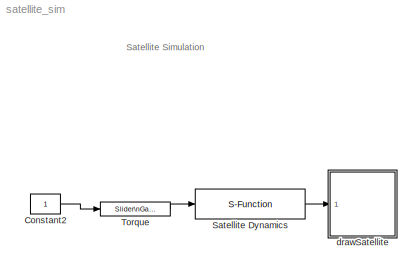
MODEL satellite_sim
KIND model
BLOCK [Constant] Constant2
  OutDataType = sfix(16)
  OutScaling = 2^0
  SID = 13
BLOCK [S-Function] Satellite Dynamics
  EnableBusSupport = off
  FunctionName = satellite_dynamics
  Parameters = AP
  Ports = [1, 1]
  SID = 15
BLOCK [Reference] Torque  REF=simulink/Math\nOperations/Slider\nGain
  FunctionWithSeparateData = off
  Ports = [1, 1]
  RTWMemSecDataConstants = Inherit from model
  RTWMemSecDataInternal = Inherit from model
  RTWMemSecDataParameters = Inherit from model
  RTWMemSecFuncExecute = Inherit from model
  RTWMemSecFuncInitTerm = Inherit from model
  SID = 14
  ShowPortLabels = FromPortIcon
  SourceBlock = simulink/Math\nOperations/Slider\nGain
  SourceType = Slider Gain
  SystemSampleTime = -1
  gain = -0.4
  high = 10
  low = -10
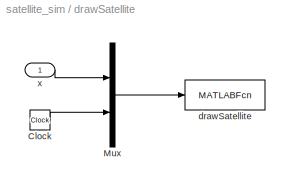
BLOCK [SubSystem] drawSatellite
  FunctionWithSeparateData = off
  MaskDisplay = image(imread('tv.jpg'))
  MaskHideContents = off
  MaskIconFrame = on
  MaskIconOpaque = on
  MaskIconRotate = none
  MaskIconUnits = autoscale
  MaskInitialization = % drawing parameters\nL = 1;\nw = .3;\n
  MaskPortRotate = default
  MinAlgLoopOccurrences = off
  Opaque = off
  Ports = [1]
  PropExecContextOutsideSubsystem = off
  RTWSystemCode = Auto
  RequestExecContextInheritance = off
  SID = 4
BLOCK [Clock] drawSatellite/Clock
  Decimation = 10
  SID = 6
BLOCK [Mux] drawSatellite/Mux
  DisplayOption = bar
  Inputs = 2
  Ports = [2, 1]
  SID = 7
BLOCK [MATLABFcn] drawSatellite/drawSatellite
  MATLABFcn = drawSatellite(u,L,w)
  OutputDimensions = 0
  Ports = [1]
  SID = 8
  SampleTime = 0.1
BLOCK [Inport] drawSatellite/x
  IconDisplay = Port number
  SID = 5
ANNOTATION (root): Satellite Simulation
LINE Constant2:1 -> Torque:1
LINE Satellite Dynamics:1 -> drawSatellite:1
LINE Torque:1 -> Satellite Dynamics:1
LINE drawSatellite/Clock:1 -> drawSatellite/Mux:2
LINE drawSatellite/Mux:1 -> drawSatellite/drawSatellite:1
LINE drawSatellite/x:1 -> drawSatellite/Mux:1
